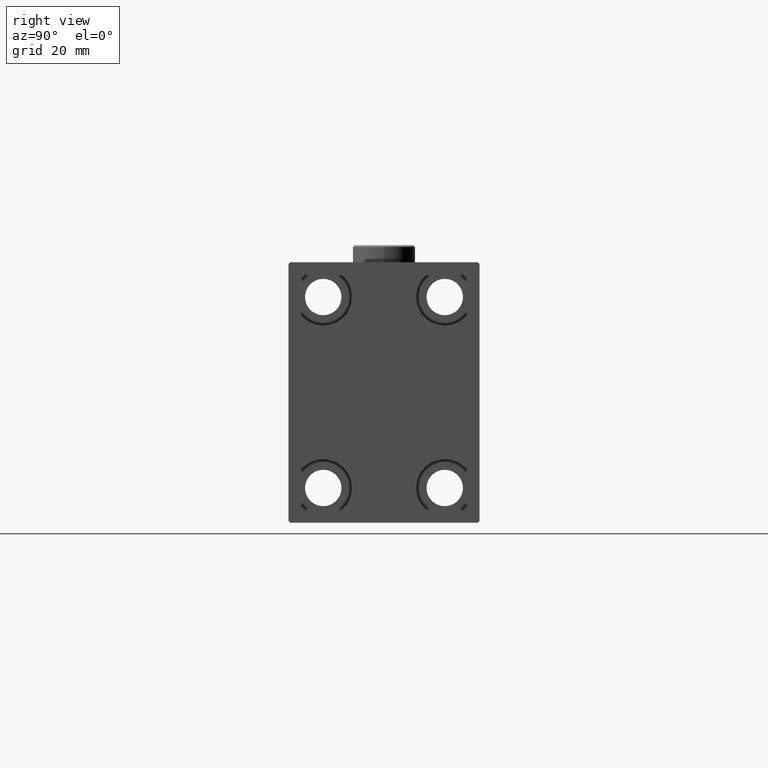
[diagram: clean part render]
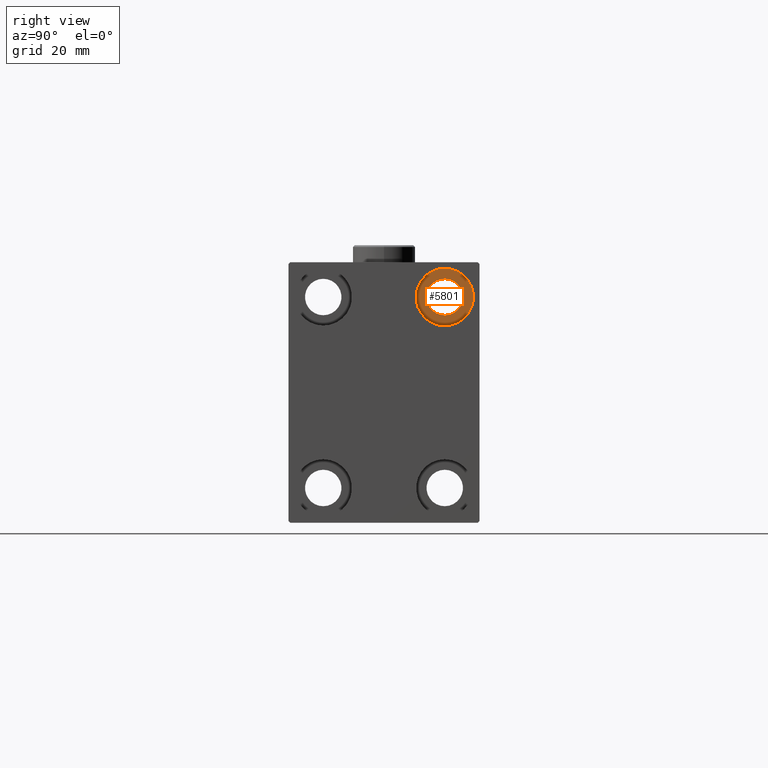
[diagram: same view with one face highlighted and labeled with its STEP entity id]
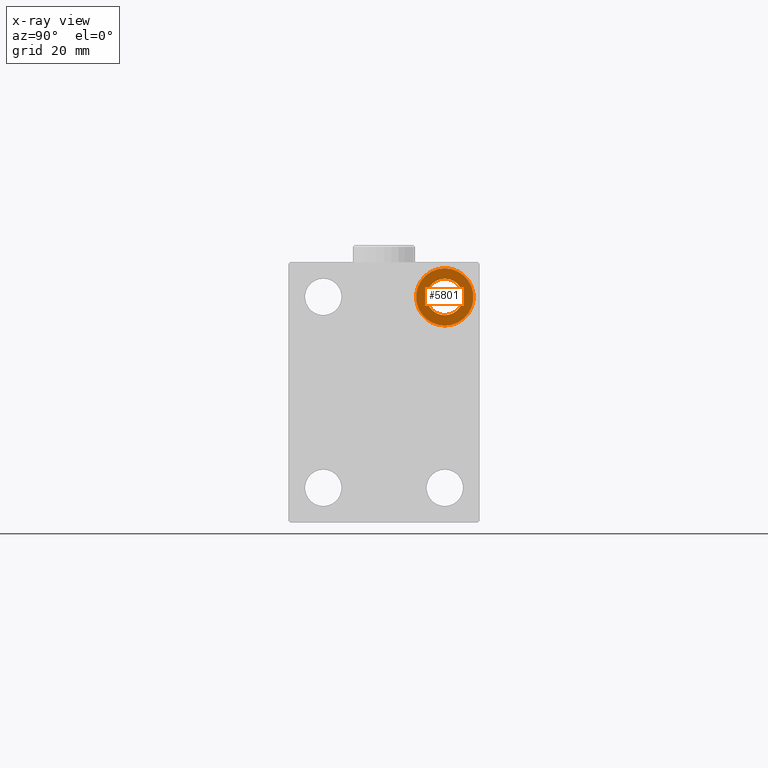
[diagram: x-ray of the same camera — body ghosted, the highlighted face saturated]
A machine part, right view. The second image highlights one B-rep face of the part: STEP entity #5801.
The next image is the same camera in x-ray: the body ghosted, the highlighted face saturated — about 0% of this face is hidden behind the body in this view.
In plain terms, the highlighted planar face has unit normal (1, 0, 0).
Its self-contained STEP definition (entity closure, byte-faithful):
#831 = DIRECTION ( 'NONE',  ( 0.000000000000000000, 0.000000000000000000, 1.000000000000000000 ) ) ;
#1601 = AXIS2_PLACEMENT_3D ( 'NONE', #28048, #32140, #831 ) ;
#2442 = CARTESIAN_POINT ( 'NONE',  ( 163.9999999999999716, 17.50000000000000355, 27.49999999999999645 ) ) ;
#2558 = CARTESIAN_POINT ( 'NONE',  ( 163.9999999999999716, 17.50000000000000355, 27.49999999999999645 ) ) ;
#5101 = VERTEX_POINT ( 'NONE', #16659 ) ;
#5401 = VERTEX_POINT ( 'NONE', #41485 ) ;
#5489 = PLANE ( 'NONE',  #37170 ) ;
#5713 = FACE_OUTER_BOUND ( 'NONE', #43472, .T. ) ;
#5801 = ADVANCED_FACE ( 'NONE', ( #5713, #9588 ), #5489, .T. ) ;
#6164 = CARTESIAN_POINT ( 'NONE',  ( 163.9999999999999716, 0.000000000000000000, 0.000000000000000000 ) ) ;
#7242 = DIRECTION ( 'NONE',  ( -1.000000000000000000, -0.000000000000000000, -0.000000000000000000 ) ) ;
#7597 = CARTESIAN_POINT ( 'NONE',  ( 163.9999999999999716, 17.50000000000000355, 22.25000000000000000 ) ) ;
#9588 = FACE_BOUND ( 'NONE', #42510, .T. ) ;
#10029 = ORIENTED_EDGE ( 'NONE', *, *, #35444, .F. ) ;
#13069 = DIRECTION ( 'NONE',  ( 0.000000000000000000, 0.000000000000000000, -1.000000000000000000 ) ) ;
#13261 = AXIS2_PLACEMENT_3D ( 'NONE', #31247, #7242, #30589 ) ;
#14920 = CIRCLE ( 'NONE', #33144, 5.249999999999997335 ) ;
#15334 = ORIENTED_EDGE ( 'NONE', *, *, #25886, .T. ) ;
#15918 = EDGE_CURVE ( 'NONE', #24930, #5101, #20534, .T. ) ;
#15994 = DIRECTION ( 'NONE',  ( 0.000000000000000000, 0.000000000000000000, 1.000000000000000000 ) ) ;
#16161 = DIRECTION ( 'NONE',  ( -1.000000000000000000, -0.000000000000000000, -0.000000000000000000 ) ) ;
#16280 = DIRECTION ( 'NONE',  ( -1.000000000000000000, -0.000000000000000000, -0.000000000000000000 ) ) ;
#16659 = CARTESIAN_POINT ( 'NONE',  ( 163.9999999999999716, 17.50000000000000355, 19.25000000000000000 ) ) ;
#20534 = CIRCLE ( 'NONE', #13261, 8.249999999999992895 ) ;
#21290 = CIRCLE ( 'NONE', #1601, 8.249999999999992895 ) ;
#21295 = CARTESIAN_POINT ( 'NONE',  ( 163.9999999999999716, 17.50000000000000355, 35.74999999999999289 ) ) ;
#22626 = ORIENTED_EDGE ( 'NONE', *, *, #15918, .F. ) ;
#24797 = AXIS2_PLACEMENT_3D ( 'NONE', #2558, #16280, #13069 ) ;
#24930 = VERTEX_POINT ( 'NONE', #21295 ) ;
#25886 = EDGE_CURVE ( 'NONE', #31665, #5401, #36473, .T. ) ;
#26272 = DIRECTION ( 'NONE',  ( 1.000000000000000000, 0.000000000000000000, -0.000000000000000000 ) ) ;
#28048 = CARTESIAN_POINT ( 'NONE',  ( 163.9999999999999716, 17.50000000000000355, 27.49999999999999645 ) ) ;
#30589 = DIRECTION ( 'NONE',  ( 0.000000000000000000, 0.000000000000000000, 1.000000000000000000 ) ) ;
#30757 = DIRECTION ( 'NONE',  ( 0.000000000000000000, 0.000000000000000000, -1.000000000000000000 ) ) ;
#31247 = CARTESIAN_POINT ( 'NONE',  ( 163.9999999999999716, 17.50000000000000355, 27.49999999999999645 ) ) ;
#31665 = VERTEX_POINT ( 'NONE', #7597 ) ;
#32140 = DIRECTION ( 'NONE',  ( -1.000000000000000000, -0.000000000000000000, -0.000000000000000000 ) ) ;
#33144 = AXIS2_PLACEMENT_3D ( 'NONE', #2442, #16161, #30757 ) ;
#35444 = EDGE_CURVE ( 'NONE', #5101, #24930, #21290, .T. ) ;
#36473 = CIRCLE ( 'NONE', #24797, 5.249999999999997335 ) ;
#37170 = AXIS2_PLACEMENT_3D ( 'NONE', #6164, #26272, #15994 ) ;
#39980 = ORIENTED_EDGE ( 'NONE', *, *, #44998, .T. ) ;
#41485 = CARTESIAN_POINT ( 'NONE',  ( 163.9999999999999716, 17.50000000000000355, 32.74999999999999289 ) ) ;
#42510 = EDGE_LOOP ( 'NONE', ( #39980, #15334 ) ) ;
#43472 = EDGE_LOOP ( 'NONE', ( #10029, #22626 ) ) ;
#44998 = EDGE_CURVE ( 'NONE', #5401, #31665, #14920, .T. ) ;